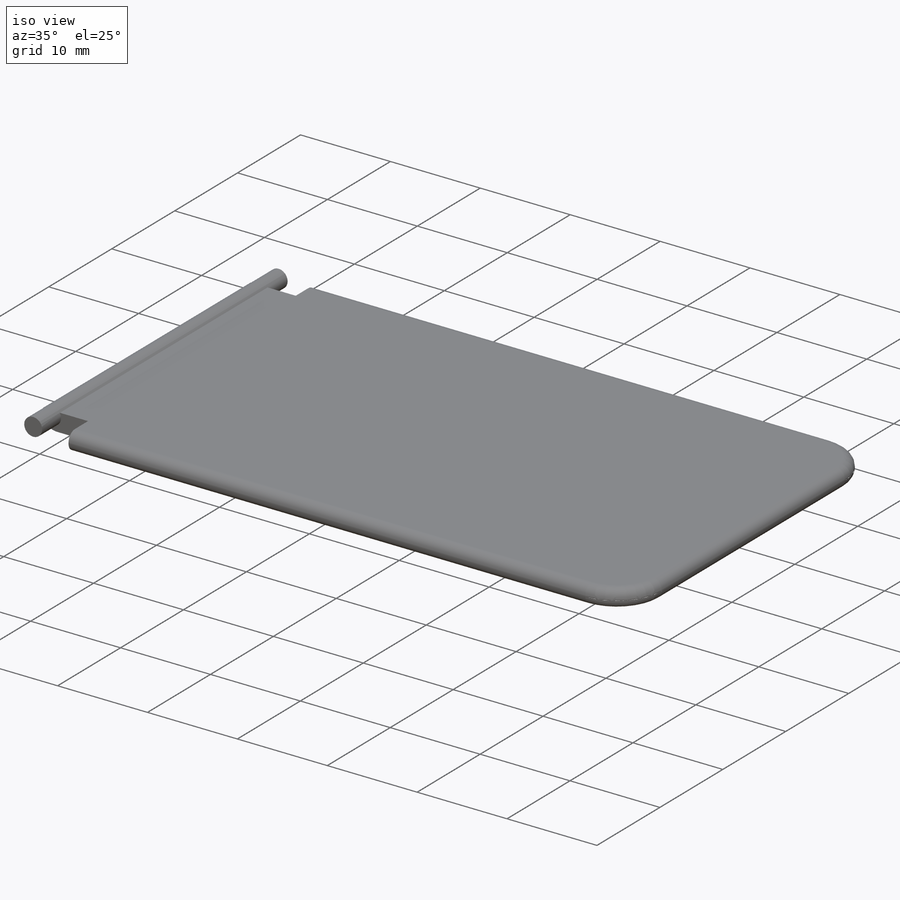
[diagram: iso view]
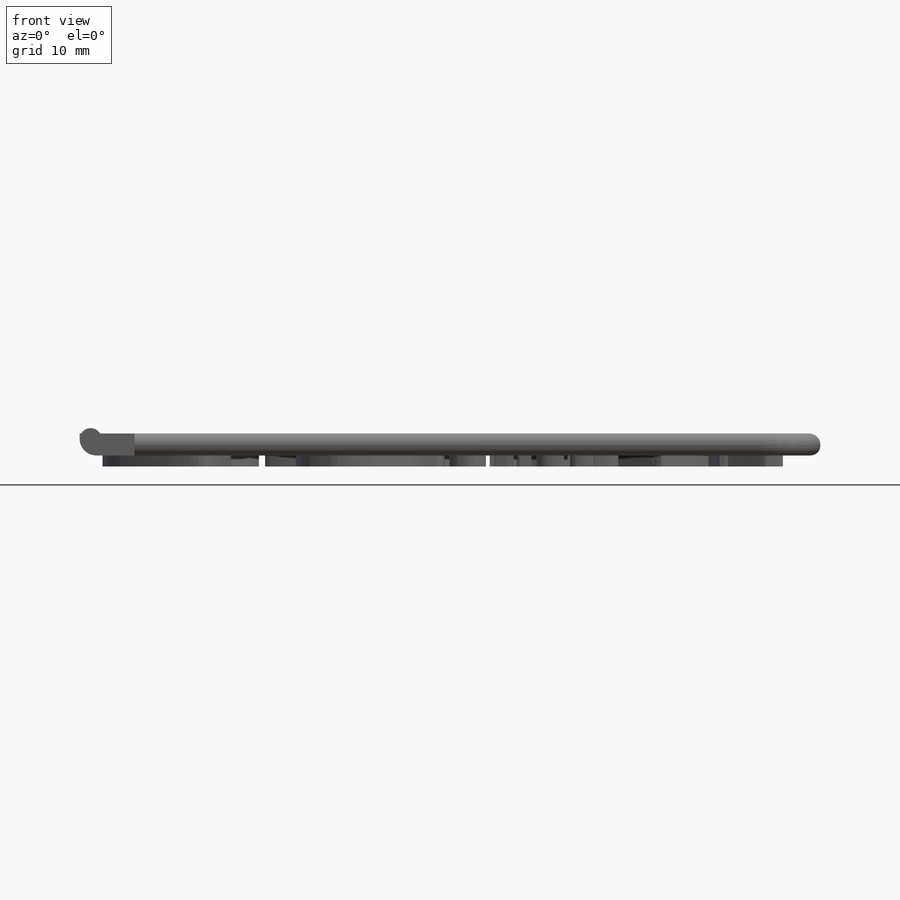
[diagram: front view]
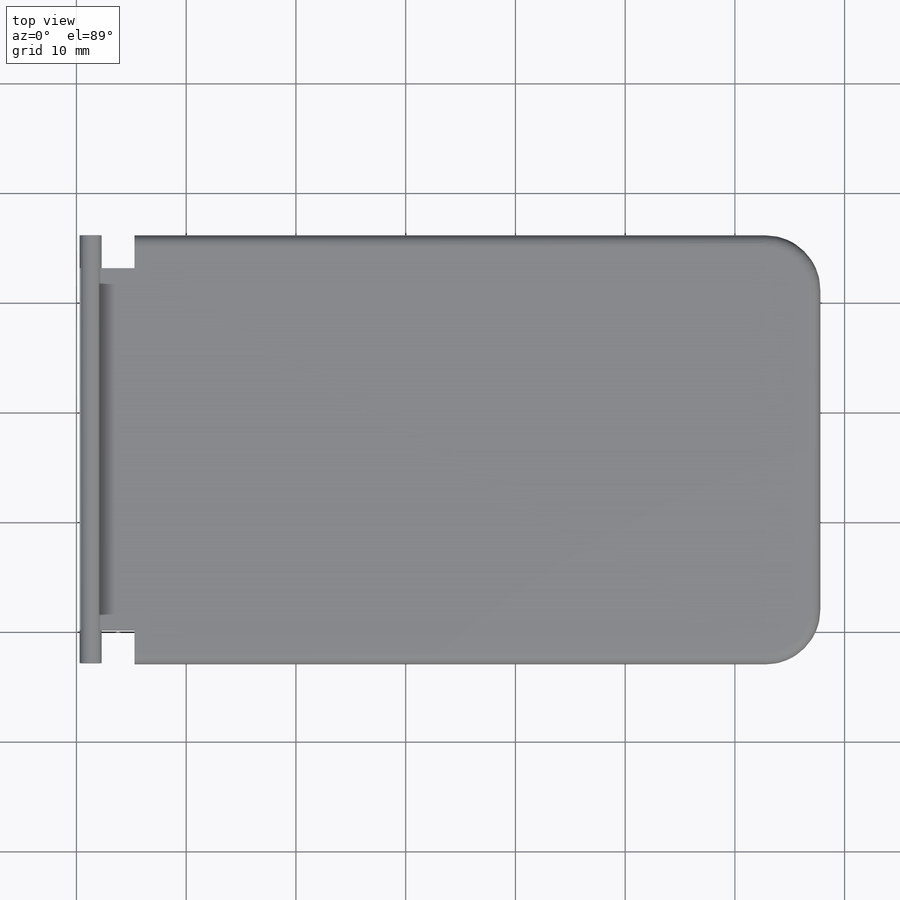
[diagram: top view]
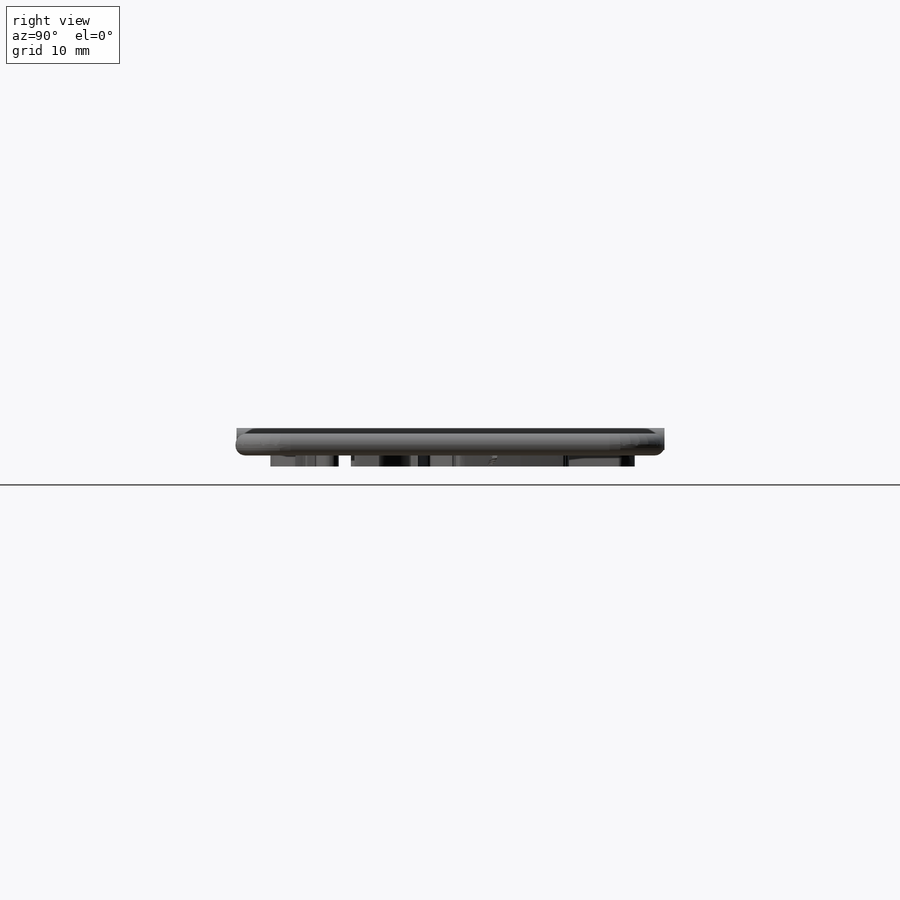
[diagram: right view]
SOLIDWORKS PART (.sldprt)
format: sldprt  version: not decoded by parser v0  size: 1,458,688 bytes
history: native  units: mm
features: sketch x7, extrude x5, fillet x3, cut_extrude x2, material x1 (+12 scaffold rows collapsed)
feature tree (30):
  scaffold x12  (default folders/planes/origin — collapsed)
  material  "ABS"
  sketch  "Sketch1"  dims[D1=33.0mm D2=67.5mm D3=0.1mm D4=3.0mm D5=5.0mm D6=5.0mm D7=5.0mm D8=3.0mm]
  extrude  "Boss-Extrude1"  Depth=2mm
  sketch  "Sketch2"  dims[D1=2.0mm]
  extrude  "Boss-Extrude2"  Depth=3mm
  sketch  "Sketch3"  dims[D3=3.0mm D4=3.0mm D5=15.0mm D6=30.0mm D1=2.0 D2=2.0]
  cut_extrude  "Cut-Extrude1"  Depth=1.5mm
  sketch  "Sketch5"
  extrude  "Boss-Extrude3"  Depth=1mm
  fillet  "Fillet2"  Radius=1.5mm
  fillet  "Fillet3"  Radius=0.9mm
  sketch  "Sketch6"
  extrude  "Boss-Extrude4"  Depth=10mm
  sketch  "Sketch14"
  extrude  "Boss-Extrude5"  [1 undecoded]
  sketch  "Sketch15"  dims[c1.D2=2.0mm c1.D3=2.0mm c1.D4=2.0mm c1.D5=2.0mm c1.D6=2.0mm c1.D7=2.0mm c1.D8=2.0mm c1.D9=2.0mm c1.D10=~15.951528mm c2.D10=~0.163236deg c3.D10=2.0mm c3.D1=0.0mm]
  cut_extrude  "Cut-Extrude2"  Depth=1mm
  fillet  "Fillet4"  Radius=1mm
decode coverage: 13 of 17 modeling features carry decoded parameters
note: ~ marks probable driven/reference dimensions
note: 1 parameter value undecoded
note: suppression state not decoded; provenance and decode notes live in map.json
